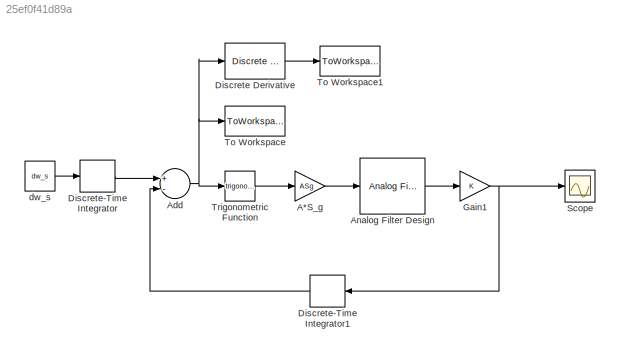
MODEL slx_25ef0f41d89a
KIND model
BLOCK [Gain] A*S_g
  Gain = ASg
  OutDataTypeStr = Inherit: Inherit via internal rule
  ParamDataTypeStr = Inherit: Inherit via internal rule
  SampleTime = dt
  SaturateOnIntegerOverflow = off
BLOCK [Sum] Add
  InputSameDT = off
  Inputs = +-
  OutDataTypeStr = Inherit: Inherit via internal rule
  Ports = [2, 1]
  SampleTime = dt
  SaturateOnIntegerOverflow = off
BLOCK [Reference] Analog Filter Design  REF=dsparch4/Analog
Filter Design
  N = n
  Ports = [1, 1]
  Rp = 2
  Rs = 40
  SourceBlock = dsparch4/Analog\nFilter Design
  SourceType = Analog Filter Design
  Whi = 80
  Wlo = wn
  filttype = Lowpass
  method = Butterworth
BLOCK [Reference] Discrete Derivative  REF=simulink/Discrete/Discrete Derivative
  DoSatur = off
  ICPrevScaledInput = 0.0
  InputProcessing = Inherited
  LockScale = off
  OutDataType = fixdt(1, 16)
  OutDataTypeStr = Inherit: Inherit via internal rule
  OutMax = []
  OutMin = []
  OutScaling = 2^-10
  OutputDataTypeScalingMode = Inherit via internal rule
  Ports = [1, 1]
  RndMeth = Floor
  SourceBlock = simulink/Discrete/Discrete Derivative
  SourceType = Discrete Derivative
  gainval = 1.0
BLOCK [DiscreteIntegrator] Discrete-Time Integrator
  InitialConditionSetting = State (most efficient)
  Ports = [1, 1]
  SampleTime = dt
BLOCK [DiscreteIntegrator] Discrete-Time Integrator1
  InitialConditionSetting = State (most efficient)
  Ports = [1, 1]
  SampleTime = dt
BLOCK [Gain] Gain1
  OutDataTypeStr = Inherit: Inherit via internal rule
  ParamDataTypeStr = Inherit: Inherit via internal rule
  SampleTime = dt
  SaturateOnIntegerOverflow = off
BLOCK [Scope] Scope
  Floating = off
  LimitDataPoints = off
  MaxDataPoints = 10000
  NumInputPorts = 1
  Ports = [1]
  SaveToWorkspace = on
  ShowLegends = off
  YMax = 1.5
  YMin = -1
  ZoomMode = yonly
BLOCK [ToWorkspace] To Workspace
  FixptAsFi = on
  MaxDataPoints = inf
  Ports = [1]
  SampleTime = -1
  Save2DSignal = 2-D array (concatenate along first dimension)
  VariableName = psi
BLOCK [ToWorkspace] To Workspace1
  FixptAsFi = on
  MaxDataPoints = inf
  Ports = [1]
  SampleTime = -1
  Save2DSignal = 2-D array (concatenate along first dimension)
  VariableName = dpsi
BLOCK [Trigonometry] Trigonometric Function
  OutputSignalType = real
  Ports = [1, 1]
  SampleTime = dt
BLOCK [Constant] dw_s
  SampleTime = dt
  Value = dw_s
LINE A*S_g:1 -> Analog Filter Design:1
NET Add:1 -> Discrete Derivative:1, To Workspace:1, Trigonometric Function:1
LINE Analog Filter Design:1 -> Gain1:1
LINE Discrete Derivative:1 -> To Workspace1:1
LINE Discrete-Time Integrator1:1 -> Add:2
LINE Discrete-Time Integrator:1 -> Add:1
NET Gain1:1 -> Discrete-Time Integrator1:1, Scope:1
LINE Trigonometric Function:1 -> A*S_g:1
LINE dw_s:1 -> Discrete-Time Integrator:1
note: NET lines group one-source signal fan-out (src -> all destinations, sorted); 1:1 wires keep LINE
